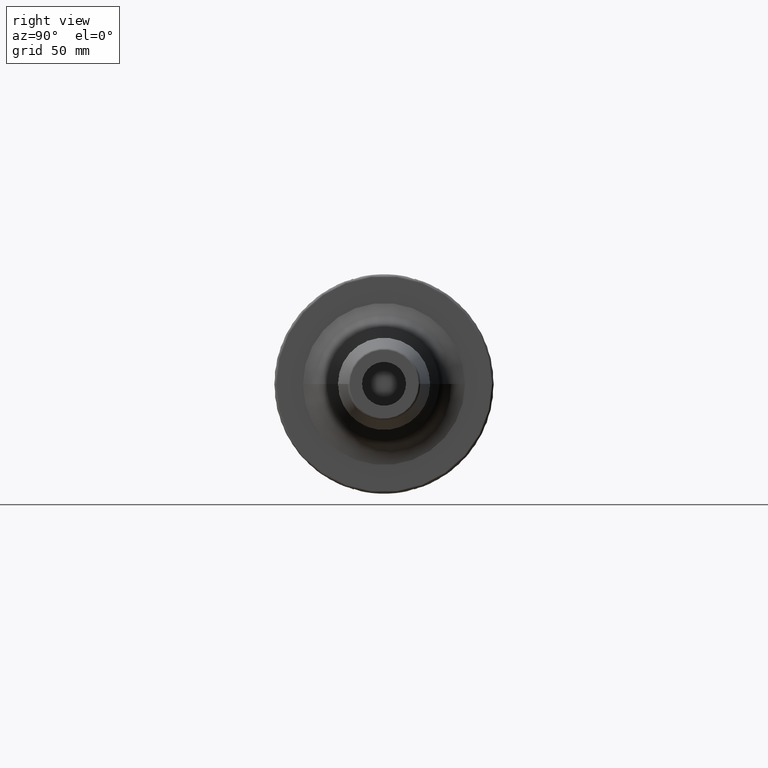
[diagram: clean part render]
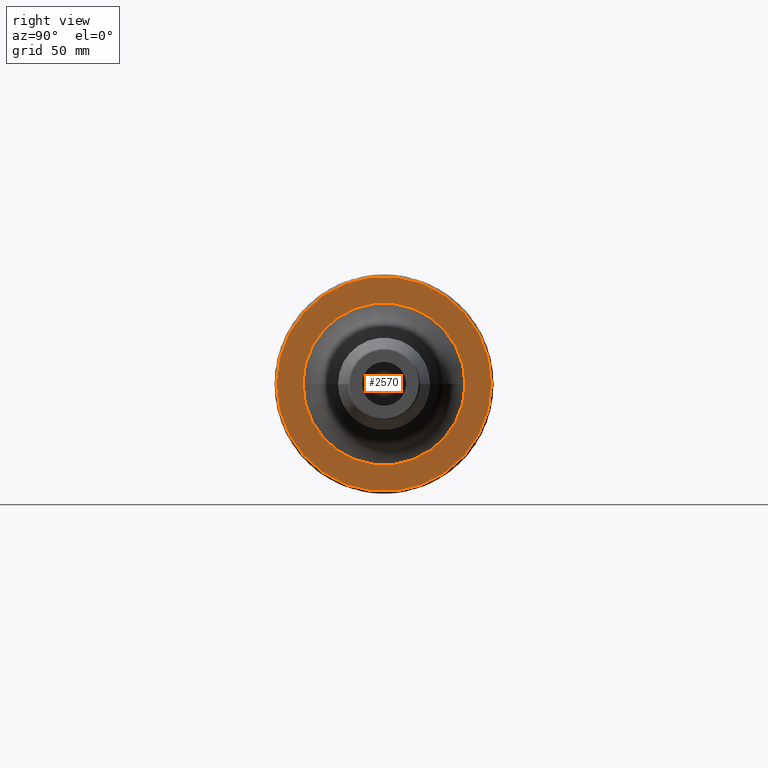
[diagram: same view with one face highlighted and labeled with its STEP entity id]
A machine part, right view. The second image highlights one B-rep face of the part: STEP entity #2570.
In plain terms, the highlighted planar face has unit normal (1, 0, 0).
Its self-contained STEP definition (entity closure, byte-faithful):
#814=CARTESIAN_POINT('',(3.8E1,0.E0,0.E0));
#815=DIRECTION('',(1.E0,0.E0,0.E0));
#816=DIRECTION('',(0.E0,1.E0,0.E0));
#817=AXIS2_PLACEMENT_3D('',#814,#815,#816);
#829=CARTESIAN_POINT('',(3.8E1,0.E0,0.E0));
#830=DIRECTION('',(-1.E0,0.E0,0.E0));
#831=DIRECTION('',(0.E0,1.E0,0.E0));
#832=AXIS2_PLACEMENT_3D('',#829,#830,#831);
#834=CARTESIAN_POINT('',(3.8E1,0.E0,0.E0));
#835=DIRECTION('',(1.E0,0.E0,0.E0));
#836=DIRECTION('',(0.E0,-1.E0,0.E0));
#837=AXIS2_PLACEMENT_3D('',#834,#835,#836);
#839=CARTESIAN_POINT('',(3.8E1,0.E0,0.E0));
#840=DIRECTION('',(1.E0,0.E0,0.E0));
#841=DIRECTION('',(0.E0,1.E0,0.E0));
#842=AXIS2_PLACEMENT_3D('',#839,#840,#841);
#1322=CARTESIAN_POINT('',(3.8E1,4.89875E1,0.E0));
#1323=VERTEX_POINT('',#1322);
#1324=CARTESIAN_POINT('',(3.8E1,-4.89875E1,-1.199847701465E-14));
#1325=VERTEX_POINT('',#1324);
#1431=CARTESIAN_POINT('',(3.8E1,-3.691668149994E1,0.E0));
#1432=CARTESIAN_POINT('',(3.8E1,3.691668149994E1,0.E0));
#1433=VERTEX_POINT('',#1431);
#1434=VERTEX_POINT('',#1432);
#2555=CARTESIAN_POINT('',(3.8E1,0.E0,0.E0));
#2556=DIRECTION('',(1.E0,0.E0,0.E0));
#2557=DIRECTION('',(0.E0,-1.E0,0.E0));
#2558=AXIS2_PLACEMENT_3D('',#2555,#2556,#2557);
#2559=PLANE('',#2558);
#2560=ORIENTED_EDGE('',*,*,#2550,.T.);
#2561=ORIENTED_EDGE('',*,*,#2534,.F.);
#2562=EDGE_LOOP('',(#2560,#2561));
#2563=FACE_OUTER_BOUND('',#2562,.F.);
#2565=ORIENTED_EDGE('',*,*,#2564,.T.);
#2567=ORIENTED_EDGE('',*,*,#2566,.T.);
#2568=EDGE_LOOP('',(#2565,#2567));
#2569=FACE_BOUND('',#2568,.F.);
#2570=ADVANCED_FACE('',(#2563,#2569),#2559,.T.);
#818=CIRCLE('',#817,4.89875E1);
#833=CIRCLE('',#832,4.89875E1);
#838=CIRCLE('',#837,3.691668149994E1);
#843=CIRCLE('',#842,3.691668149994E1);
#2534=EDGE_CURVE('',#1323,#1325,#818,.T.);
#2550=EDGE_CURVE('',#1323,#1325,#833,.T.);
#2564=EDGE_CURVE('',#1433,#1434,#838,.T.);
#2566=EDGE_CURVE('',#1434,#1433,#843,.T.);